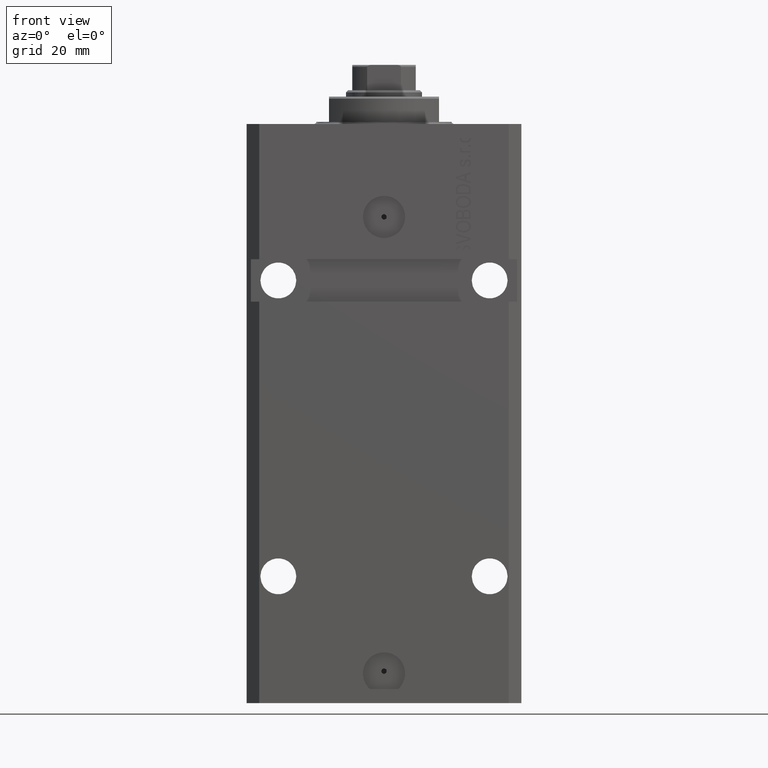
[diagram: clean part render]
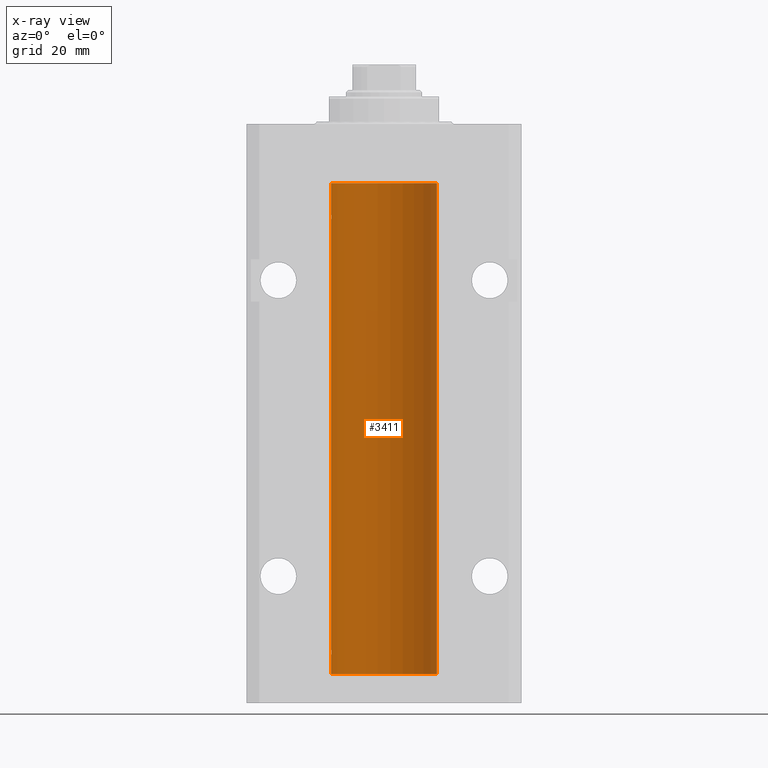
[diagram: x-ray — body ghosted, one internal face saturated and labeled with its STEP entity id]
A machine part, front view, then the same camera in x-ray: the body is ghosted and one INTERNAL B-rep face — a face not visible from any outside direction — is saturated and labeled: STEP entity #3411.
In plain terms, the highlighted cylindrical surface (partial cylindrical patch) has radius 12.5 mm, axis along (0, 0, 1).
Its self-contained STEP definition (entity closure, byte-faithful):
#648 = DIRECTION ( 'NONE',  ( -0.000000000000000000, -0.000000000000000000, 1.000000000000000000 ) ) ;
#764 = VECTOR ( 'NONE', #10355, 1000.000000000000000 ) ;
#1496 = VERTEX_POINT ( 'NONE', #11683 ) ;
#1501 = EDGE_CURVE ( 'NONE', #25153, #32438, #35901, .T. ) ;
#1531 = CARTESIAN_POINT ( 'NONE',  ( -12.48810268015257563, 0.5573155909661349217, -21.67347410093867666 ) ) ;
#2822 = CARTESIAN_POINT ( 'NONE',  ( -12.50000000000000000, 1.530808498934191521E-15, -130.0999999999999943 ) ) ;
#3411 = ADVANCED_FACE ( 'NONE', ( #19706 ), #4779, .F. ) ;
#3883 = LINE ( 'NONE', #4606, #39842 ) ;
#4464 = CARTESIAN_POINT ( 'NONE',  ( -12.48809959379011758, 0.5462151254764870956, -125.3146137048161677 ) ) ;
#4606 = CARTESIAN_POINT ( 'NONE',  ( -12.50000000000000000, 1.530808498934191521E-15, -130.0999999999999943 ) ) ;
#4779 = CYLINDRICAL_SURFACE ( 'NONE', #20786, 12.50000000000000000 ) ;
#4842 = DIRECTION ( 'NONE',  ( -0.000000000000000000, -0.000000000000000000, 1.000000000000000000 ) ) ;
#5416 = ORIENTED_EDGE ( 'NONE', *, *, #24609, .F. ) ;
#5592 = ORIENTED_EDGE ( 'NONE', *, *, #37640, .F. ) ;
#6082 = CARTESIAN_POINT ( 'NONE',  ( -12.50000000000017941, 3.883381646606358354E-13, -22.62500000000358824 ) ) ;
#6603 = ORIENTED_EDGE ( 'NONE', *, *, #1501, .T. ) ;
#6900 = DIRECTION ( 'NONE',  ( 0.000000000000000000, 0.000000000000000000, 1.000000000000000000 ) ) ;
#8550 = CARTESIAN_POINT ( 'NONE',  ( -12.50000000000000178, 0.08260426088727608473, -124.3749999999999858 ) ) ;
#8598 = DIRECTION ( 'NONE',  ( 0.000000000000000000, 0.000000000000000000, 1.000000000000000000 ) ) ;
#9397 = EDGE_LOOP ( 'NONE', ( #23790, #5592, #42973, #12925, #44402, #20135, #5416, #6603 ) ) ;
#9469 = CARTESIAN_POINT ( 'NONE',  ( -12.50000000000000000, -2.089494013101375120E-17, -21.37499999999999645 ) ) ;
#10118 = LINE ( 'NONE', #13725, #764 ) ;
#10355 = DIRECTION ( 'NONE',  ( -0.000000000000000000, -0.000000000000000000, 1.000000000000000000 ) ) ;
#11205 = CARTESIAN_POINT ( 'NONE',  ( -12.50000000000017941, 3.883381646606358354E-13, -22.62500000000358824 ) ) ;
#11442 = CARTESIAN_POINT ( 'NONE',  ( -12.48436376893640265, 0.6250290278979852010, -125.0813208282447135 ) ) ;
#11683 = CARTESIAN_POINT ( 'NONE',  ( -12.50000000000000000, -2.089494013101375120E-17, -21.37499999999999645 ) ) ;
#11920 = CARTESIAN_POINT ( 'NONE',  ( -12.50000000000000000, -1.890568805888175348E-14, -124.3750000000000000 ) ) ;
#12153 = CARTESIAN_POINT ( 'NONE',  ( -12.49999999999999467, 0.1631761135151251485, -125.6249999999999005 ) ) ;
#12669 = CARTESIAN_POINT ( 'NONE',  ( 0.000000000000000000, 0.000000000000000000, -130.0999999999999943 ) ) ;
#12844 = CARTESIAN_POINT ( 'NONE',  ( -12.49999999999999289, 0.1631761135151241215, -22.62499999999984013 ) ) ;
#12925 = ORIENTED_EDGE ( 'NONE', *, *, #27842, .T. ) ;
#13725 = CARTESIAN_POINT ( 'NONE',  ( -12.50000000000000000, 1.530808498934191521E-15, -130.0999999999999943 ) ) ;
#14322 = EDGE_CURVE ( 'NONE', #27246, #27857, #18976, .T. ) ;
#15831 = DIRECTION ( 'NONE',  ( 1.000000000000000000, 0.000000000000000000, 0.000000000000000000 ) ) ;
#16001 = AXIS2_PLACEMENT_3D ( 'NONE', #21618, #6900, #25943 ) ;
#16088 = DIRECTION ( 'NONE',  ( -0.000000000000000000, -0.000000000000000000, 1.000000000000000000 ) ) ;
#16422 = CARTESIAN_POINT ( 'NONE',  ( -12.50000000000000000, 1.530808498934191521E-15, -130.0999999999999943 ) ) ;
#16705 = CARTESIAN_POINT ( 'NONE',  ( -12.50000000000000000, 0.08260426088729219685, -21.37500000000000000 ) ) ;
#18976 = LINE ( 'NONE', #33689, #31817 ) ;
#19476 = DIRECTION ( 'NONE',  ( 1.000000000000000000, 0.000000000000000000, 0.000000000000000000 ) ) ;
#19706 = FACE_OUTER_BOUND ( 'NONE', #9397, .T. ) ;
#20135 = ORIENTED_EDGE ( 'NONE', *, *, #34284, .T. ) ;
#20183 = CARTESIAN_POINT ( 'NONE',  ( 0.000000000000000000, 0.000000000000000000, -130.0999999999999943 ) ) ;
#20559 = CARTESIAN_POINT ( 'NONE',  ( -12.49422197749724006, 0.3843754434364375916, -21.50047099568095277 ) ) ;
#20786 = AXIS2_PLACEMENT_3D ( 'NONE', #20183, #16088, #19476 ) ;
#21618 = CARTESIAN_POINT ( 'NONE',  ( 0.000000000000000000, 0.000000000000000000, -13.99999999999999822 ) ) ;
#21857 = CARTESIAN_POINT ( 'NONE',  ( 12.50000000000000000, 0.000000000000000000, -13.99999999999999822 ) ) ;
#22534 = CARTESIAN_POINT ( 'NONE',  ( -12.49011732893843707, 0.5003763274120269777, -125.3834811128928806 ) ) ;
#22773 = CARTESIAN_POINT ( 'NONE',  ( -12.48436813453758631, 0.6249418250771061611, -124.8366899679892441 ) ) ;
#23473 = CARTESIAN_POINT ( 'NONE',  ( -12.48436813453758454, 0.6249418250771192618, -21.83668996798922635 ) ) ;
#23790 = ORIENTED_EDGE ( 'NONE', *, *, #31751, .F. ) ;
#24177 = CARTESIAN_POINT ( 'NONE',  ( -12.49915784441386890, 0.1636601911727947889, -21.39126818989430490 ) ) ;
#24609 = EDGE_CURVE ( 'NONE', #25153, #39658, #28129, .T. ) ;
#25153 = VERTEX_POINT ( 'NONE', #40782 ) ;
#25943 = DIRECTION ( 'NONE',  ( 1.000000000000000000, 0.000000000000000000, 0.000000000000000000 ) ) ;
#26035 = EDGE_CURVE ( 'NONE', #1496, #27271, #3883, .T. ) ;
#26623 = CARTESIAN_POINT ( 'NONE',  ( -12.49625855304193855, 0.3150454781037954621, -124.4540280029748658 ) ) ;
#26859 = CARTESIAN_POINT ( 'NONE',  ( -12.50000000000017941, 3.883381307462307207E-13, -125.6250000000035953 ) ) ;
#27081 = CARTESIAN_POINT ( 'NONE',  ( -12.49625855304193678, 0.3150454781038042329, -21.45402800297484802 ) ) ;
#27246 = VERTEX_POINT ( 'NONE', #43100 ) ;
#27271 = VERTEX_POINT ( 'NONE', #47193 ) ;
#27842 = EDGE_CURVE ( 'NONE', #27857, #27271, #36804, .T. ) ;
#27857 = VERTEX_POINT ( 'NONE', #21857 ) ;
#28129 = LINE ( 'NONE', #2822, #36691 ) ;
#29780 = CARTESIAN_POINT ( 'NONE',  ( -12.48810268015257563, 0.5573155909661203777, -124.6734741009386909 ) ) ;
#30500 = CARTESIAN_POINT ( 'NONE',  ( -12.49631005746706691, 0.3253680783018559897, -125.5585674046538998 ) ) ;
#31660 = CARTESIAN_POINT ( 'NONE',  ( -12.48520330846397819, 0.6088355886774127201, -22.16325431852561323 ) ) ;
#31751 = EDGE_CURVE ( 'NONE', #39343, #32438, #10118, .T. ) ;
#31817 = VECTOR ( 'NONE', #648, 1000.000000000000000 ) ;
#32438 = VERTEX_POINT ( 'NONE', #41054 ) ;
#33399 = CARTESIAN_POINT ( 'NONE',  ( -12.49915784441387068, 0.1636601911727856851, -124.3912681898942765 ) ) ;
#33689 = CARTESIAN_POINT ( 'NONE',  ( 12.50000000000000000, 0.000000000000000000, -130.0999999999999943 ) ) ;
#33946 = CIRCLE ( 'NONE', #39308, 12.50000000000000000 ) ;
#34284 = EDGE_CURVE ( 'NONE', #1496, #39658, #45314, .T. ) ;
#35279 = CARTESIAN_POINT ( 'NONE',  ( -12.48436376893640443, 0.6250290278979917513, -22.08132082824473486 ) ) ;
#35901 = B_SPLINE_CURVE_WITH_KNOTS ( 'NONE', 3,
 ( #11920, #8550, #33399, #26623, #37739, #29780, #22773, #11442, #37495, #4464, #22534, #30500, #12153, #26859 ),
 .UNSPECIFIED., .F., .F.,
 ( 4, 2, 2, 2, 2, 2, 4 ),
 ( 3.496117753580553008E-18, 0.0002442924852390892100, 0.0004885849704781749505, 0.0009771699409563759219, 0.001221462426195476462, 0.001465754911434576785, 0.001954339881912777865 ),
 .UNSPECIFIED. ) ;
#36691 = VECTOR ( 'NONE', #43339, 1000.000000000000000 ) ;
#36804 = CIRCLE ( 'NONE', #16001, 12.50000000000000000 ) ;
#37495 = CARTESIAN_POINT ( 'NONE',  ( -12.48520330846398174, 0.6088355886774048376, -125.1632543185256310 ) ) ;
#37640 = EDGE_CURVE ( 'NONE', #27246, #39343, #33946, .T. ) ;
#37739 = CARTESIAN_POINT ( 'NONE',  ( -12.49422197749723829, 0.3843754434364221040, -124.5004709956809705 ) ) ;
#38200 = CARTESIAN_POINT ( 'NONE',  ( -12.49631005746706336, 0.3253680783018528255, -22.55856740465392463 ) ) ;
#39140 = CARTESIAN_POINT ( 'NONE',  ( -12.49011732893843529, 0.5003763274120274218, -22.38348111289287701 ) ) ;
#39308 = AXIS2_PLACEMENT_3D ( 'NONE', #12669, #8598, #15831 ) ;
#39343 = VERTEX_POINT ( 'NONE', #16422 ) ;
#39658 = VERTEX_POINT ( 'NONE', #11205 ) ;
#39842 = VECTOR ( 'NONE', #4842, 1000.000000000000000 ) ;
#40782 = CARTESIAN_POINT ( 'NONE',  ( -12.50000000000000000, -1.890568805888175348E-14, -124.3750000000000000 ) ) ;
#41054 = CARTESIAN_POINT ( 'NONE',  ( -12.50000000000017941, 3.883381307462307207E-13, -125.6250000000035953 ) ) ;
#42973 = ORIENTED_EDGE ( 'NONE', *, *, #14322, .T. ) ;
#43100 = CARTESIAN_POINT ( 'NONE',  ( 12.50000000000000000, 0.000000000000000000, -130.0999999999999943 ) ) ;
#43339 = DIRECTION ( 'NONE',  ( -0.000000000000000000, -0.000000000000000000, 1.000000000000000000 ) ) ;
#44402 = ORIENTED_EDGE ( 'NONE', *, *, #26035, .F. ) ;
#45314 = B_SPLINE_CURVE_WITH_KNOTS ( 'NONE', 3,
 ( #9469, #16705, #24177, #27081, #20559, #1531, #23473, #35279, #31660, #46364, #39140, #38200, #12844, #6082 ),
 .UNSPECIFIED., .F., .F.,
 ( 4, 2, 2, 2, 2, 2, 4 ),
 ( 2.030551168097110502E-20, 0.0002442924852390969078, 0.0004885849704781938157, 0.0009771699409563880650, 0.001221462426195485135, 0.001465754911434582423, 0.001954339881912776130 ),
 .UNSPECIFIED. ) ;
#46364 = CARTESIAN_POINT ( 'NONE',  ( -12.48809959379011403, 0.5462151254764975317, -22.31461370481611795 ) ) ;
#47193 = CARTESIAN_POINT ( 'NONE',  ( -12.50000000000000000, 1.530808498934191521E-15, -13.99999999999999822 ) ) ;